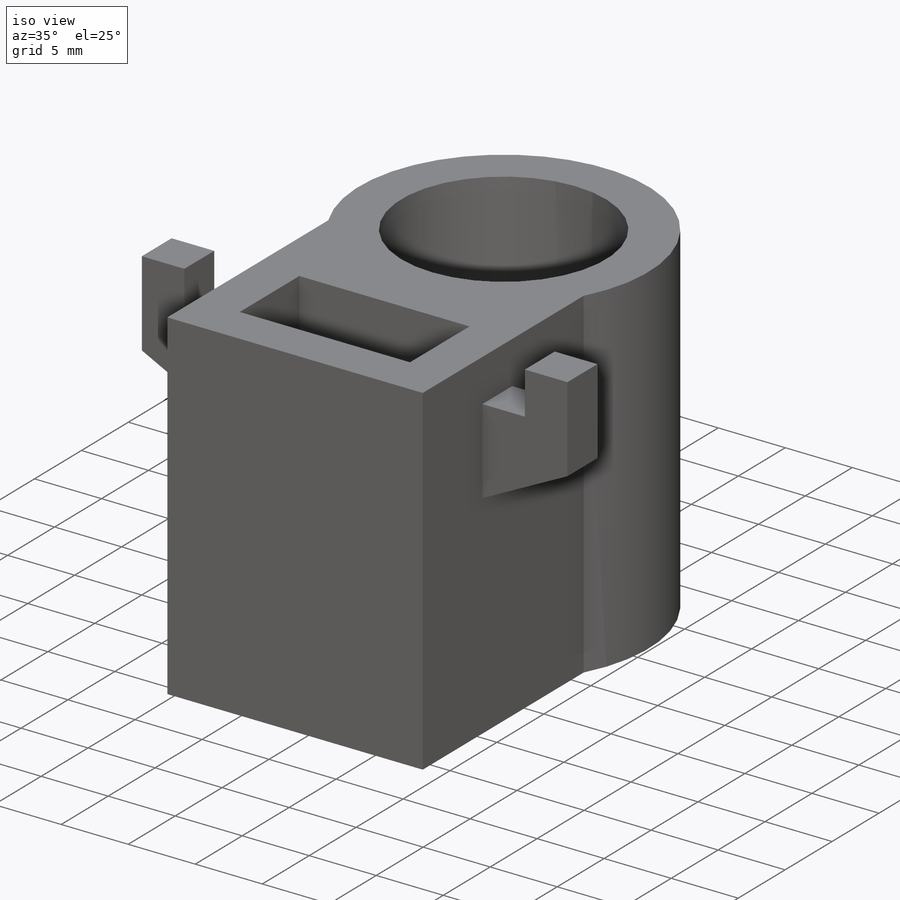
[diagram: iso view]
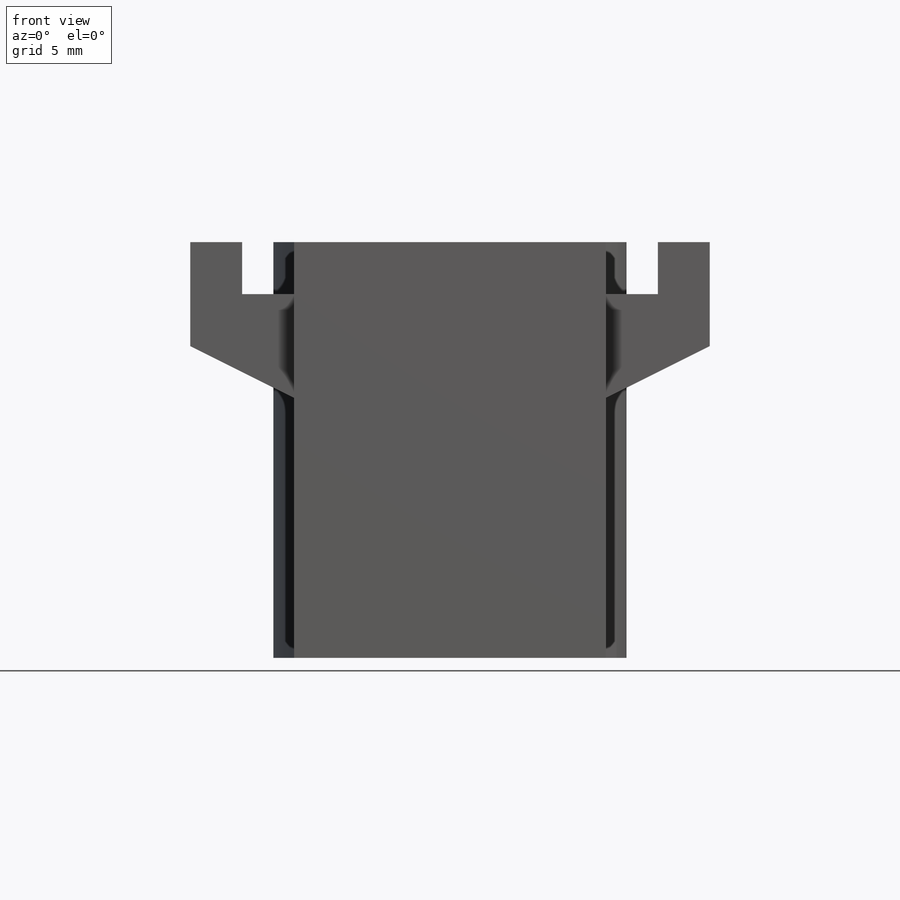
[diagram: front view]
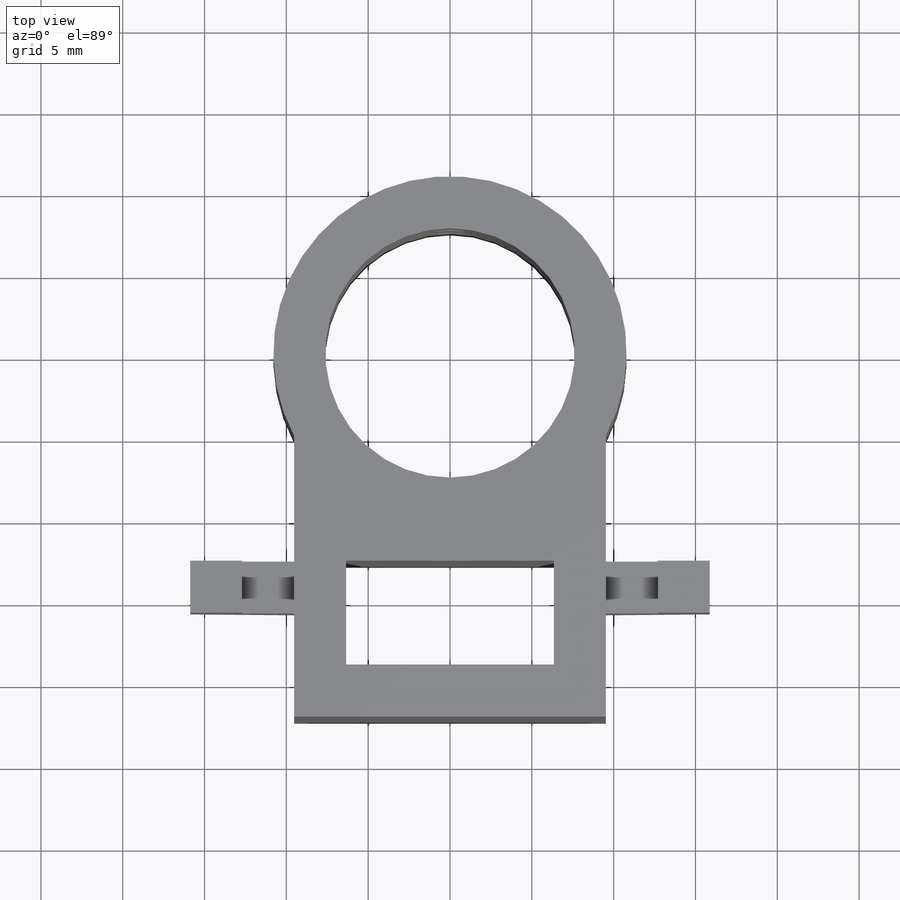
[diagram: top view]
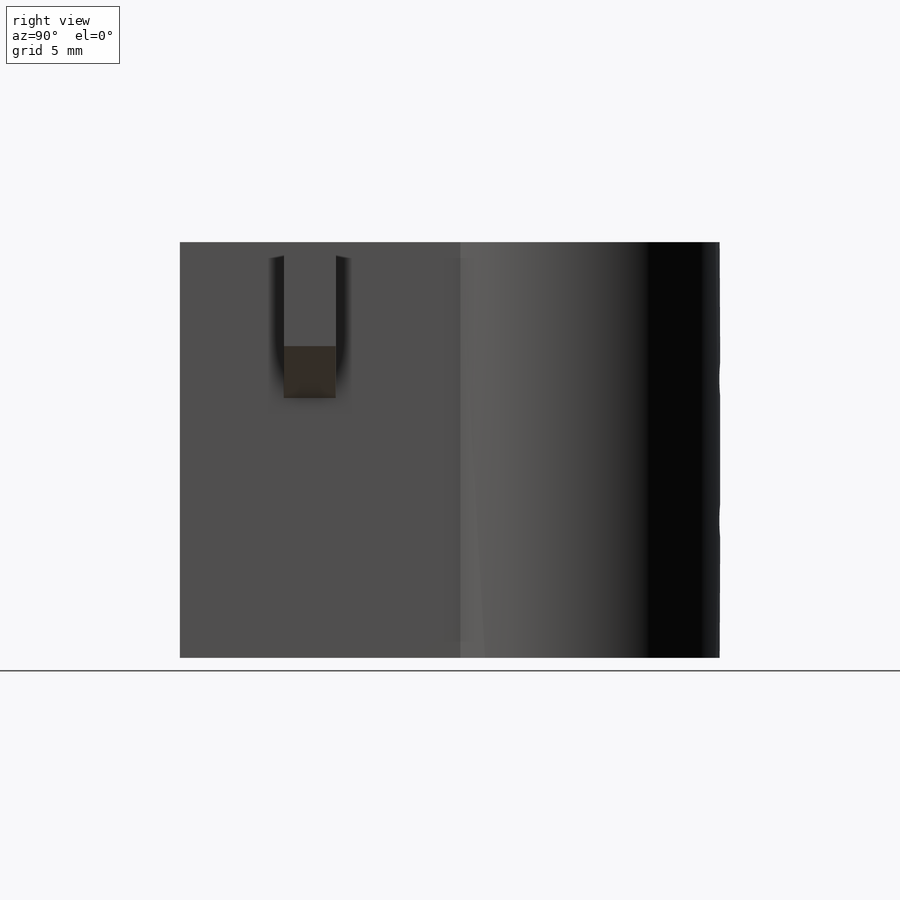
[diagram: right view]
SOLIDWORKS PART (.sldprt)
format: sldprt  version: not decoded by parser v0  size: 184,320 bytes
history: native  units: mm
features: sketch x3, plane x3, extrude x2, material x1, mirror x1, cut_extrude x1 (+11 scaffold rows collapsed)
feature tree (22):
  scaffold x11  (default folders/planes/origin — collapsed)
  material  "Material <not specified>"
  sketch  "Sketch1"  dims[c1.D5=~34.302994mm c1.D6=15.24mm c1.D3=15.24mm c1.D7=15.24mm c1.D1=6.35mm c1.D2=12.7mm c2.D3=3.175mm c2.D4=3.175mm c2.D5=3.175mm c2.D6=3.175mm c2.D7=12.7mm]
  extrude  "Boss-Extrude1"  Depth=25.4mm
  plane  "Plane1"
  plane  "Plane2"
  sketch  "Sketch3"  dims[D1=3.175mm D2=3.175mm D3=3.175mm D4=3.175mm D5=6.35mm D6=0.0mm]
  extrude  "Boss-Extrude2"  Depth=3.175mm
  mirror  "Mirror1"
  plane  "Plane3"
  sketch  "Sketch4"  dims[c1.D1=2.0828mm c1.D3=2.0828mm c1.D2=8.382mm c2.D3=21.59mm c2.D4=8.382mm]
  cut_extrude  "Cut-Extrude1"  [1 undecoded]
decode coverage: 5 of 7 modeling features carry decoded parameters
note: ~ marks probable driven/reference dimensions
note: 1 parameter value undecoded
note: suppression state not decoded; provenance and decode notes live in map.json
